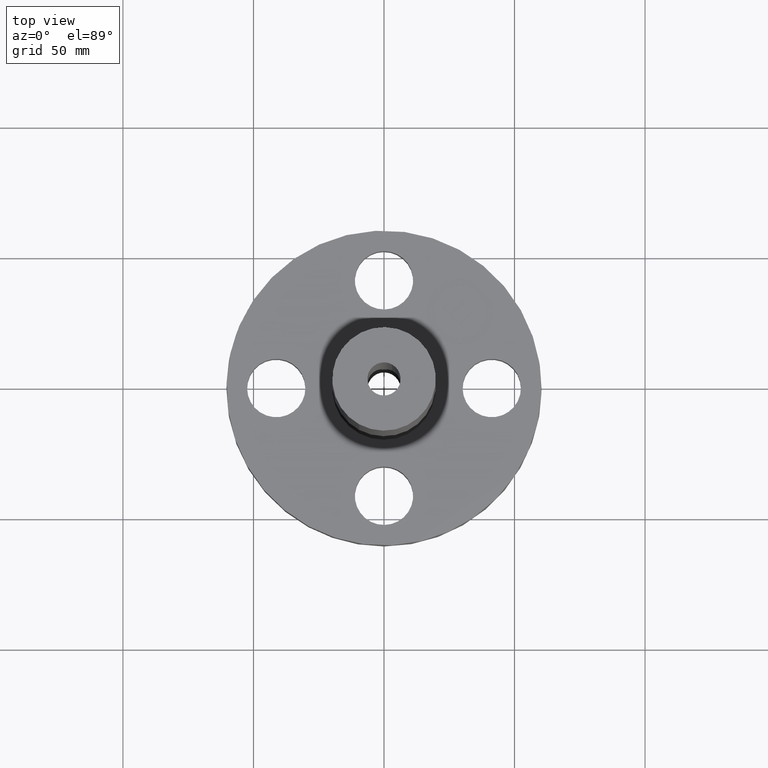
[diagram: clean part render]
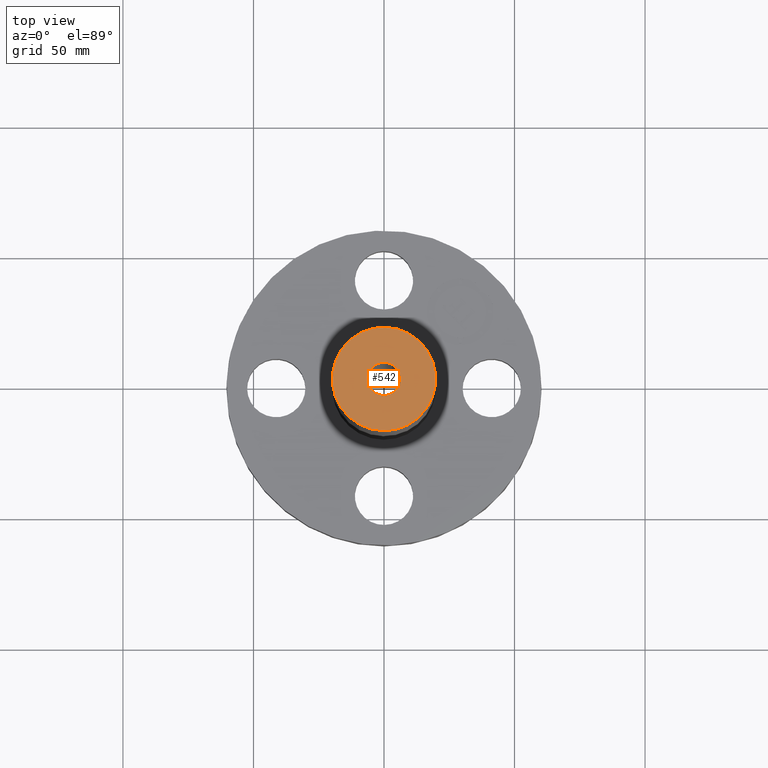
[diagram: same view with one face highlighted and labeled with its STEP entity id]
A machine part, top view. The second image highlights one B-rep face of the part: STEP entity #542.
In plain terms, the highlighted planar face has unit normal (0, 0, -1).
Its self-contained STEP definition (entity closure, byte-faithful):
#299=AXIS2_PLACEMENT_3D('Circle Axis2P3D',#297,#298,$) ;
#318=AXIS2_PLACEMENT_3D('Circle Axis2P3D',#316,#317,$) ;
#518=AXIS2_PLACEMENT_3D('Plane Axis2P3D',#515,#516,#517) ;
#526=AXIS2_PLACEMENT_3D('Circle Axis2P3D',#524,#525,$) ;
#535=AXIS2_PLACEMENT_3D('Circle Axis2P3D',#533,#534,$) ;
#294=CARTESIAN_POINT('Vertex',(0.373951920113,0.684514398277,8.75000000003)) ;
#297=CARTESIAN_POINT('Axis2P3D Location',(0.,0.,8.75000000003)) ;
#301=CARTESIAN_POINT('Vertex',(-0.373951920113,-0.684514398277,8.75000000003)) ;
#316=CARTESIAN_POINT('Axis2P3D Location',(0.,0.,8.75000000003)) ;
#515=CARTESIAN_POINT('Axis2P3D Location',(0.,0.780000000003,8.75000000003)) ;
#524=CARTESIAN_POINT('Axis2P3D Location',(0.,0.,8.75000000003)) ;
#528=CARTESIAN_POINT('Vertex',(-0.119856384652,-0.219395640473,8.75000000004)) ;
#530=CARTESIAN_POINT('Vertex',(0.119856384652,0.219395640473,8.75000000004)) ;
#533=CARTESIAN_POINT('Axis2P3D Location',(0.,0.,8.75000000003)) ;
#298=DIRECTION('Axis2P3D Direction',(0.,0.,-0.0393700787402)) ;
#317=DIRECTION('Axis2P3D Direction',(0.,0.,-0.0393700787402)) ;
#516=DIRECTION('Axis2P3D Direction',(0.,0.,-0.0393700787402)) ;
#517=DIRECTION('Axis2P3D XDirection',(0.0393700787402,0.,0.)) ;
#525=DIRECTION('Axis2P3D Direction',(0.,0.,-0.0393700787402)) ;
#534=DIRECTION('Axis2P3D Direction',(0.,0.,-0.0393700787402)) ;
#521=ORIENTED_EDGE('',*,*,#303,.F.) ;
#522=ORIENTED_EDGE('',*,*,#320,.F.) ;
#539=ORIENTED_EDGE('',*,*,#532,.T.) ;
#540=ORIENTED_EDGE('',*,*,#537,.T.) ;
#541=FACE_BOUND('',#538,.T.) ;
#542=ADVANCED_FACE('PartBody',(#523,#541),#519,.F.) ;
#300=CIRCLE('generated circle',#299,0.780000000003) ;
#319=CIRCLE('generated circle',#318,0.780000000003) ;
#527=CIRCLE('generated circle',#526,0.250000000001) ;
#536=CIRCLE('generated circle',#535,0.250000000001) ;
#303=EDGE_CURVE('',#295,#302,#300,.T.) ;
#320=EDGE_CURVE('',#302,#295,#319,.T.) ;
#532=EDGE_CURVE('',#529,#531,#527,.T.) ;
#537=EDGE_CURVE('',#531,#529,#536,.T.) ;
#520=EDGE_LOOP('',(#521,#522)) ;
#538=EDGE_LOOP('',(#539,#540)) ;
#523=FACE_OUTER_BOUND('',#520,.T.) ;
#519=PLANE('',#518) ;
#295=VERTEX_POINT('',#294) ;
#302=VERTEX_POINT('',#301) ;
#529=VERTEX_POINT('',#528) ;
#531=VERTEX_POINT('',#530) ;